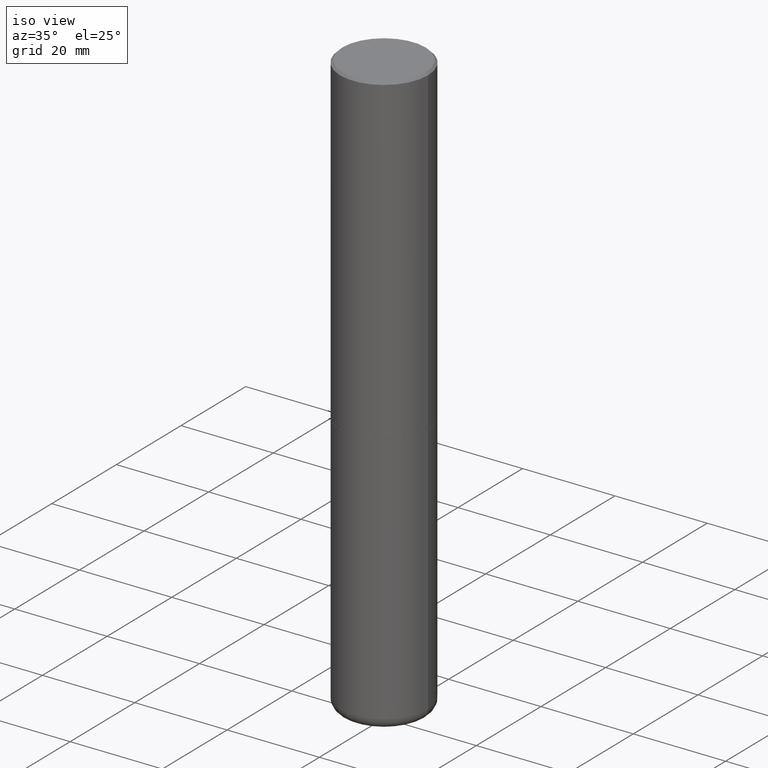
[diagram: clean part render]
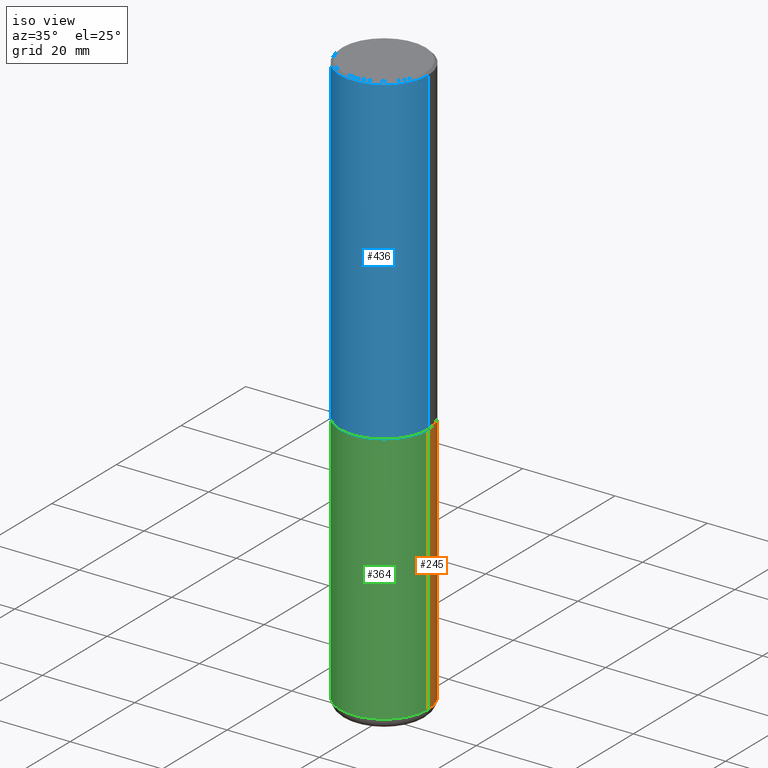
[diagram: same view with three faces highlighted in distinct colors, each labeled with its STEP entity id]
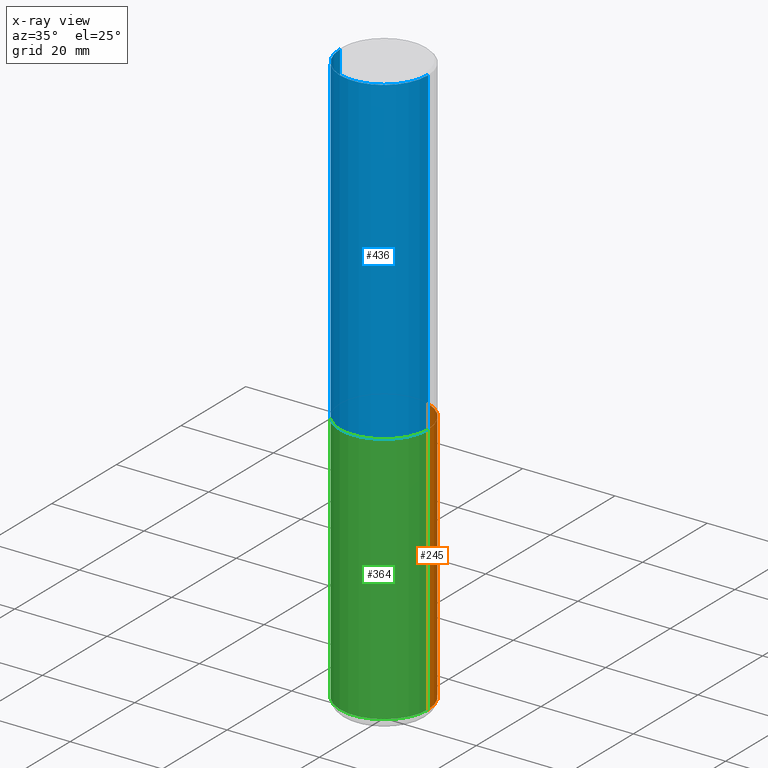
[diagram: x-ray of the same camera — body ghosted, the three highlighted faces saturated]
A machine part, iso view with three faces highlighted in distinct colors.
The next image is the same camera in x-ray (body ghosted, the three faces saturated) — at least one of them is partly hidden behind the body in this view.
Their STEP definitions:

[orange] entity #245 — the highlighted cylindrical surface (partial cylindrical patch) has radius 9.525 mm, axis along (-0, 0, 1).
#9 = CARTESIAN_POINT ( 'NONE',  ( 1.200726021880531330E-28, -1.714318533876182370E-14, -4.910003426924224534 ) ) ;
#14 = VECTOR ( 'NONE', #211, 39.37007874015748143 ) ;
#30 = VERTEX_POINT ( 'NONE', #491 ) ;
#52 = CARTESIAN_POINT ( 'NONE',  ( -0.3750000000000000555, -1.070784425118986345E-14, -2.750000000000000000 ) ) ;
#58 = VECTOR ( 'NONE', #178, 39.37007874015748143 ) ;
#61 = CARTESIAN_POINT ( 'NONE',  ( -0.3750000000000000555, -1.070784425118986345E-14, -4.910003426924224534 ) ) ;
#63 = EDGE_CURVE ( 'NONE', #492, #414, #219, .T. ) ;
#89 = DIRECTION ( 'NONE',  ( -2.445468806185136597E-29, 3.491481338843145583E-15, 1.000000000000000000 ) ) ;
#99 = CARTESIAN_POINT ( 'NONE',  ( -0.3750000000000000555, 2.664535259100376091E-15, -1.844600658845589598E-29 ) ) ;
#105 = CIRCLE ( 'NONE', #213, 0.3750000000000000555 ) ;
#111 = EDGE_CURVE ( 'NONE', #30, #492, #105, .T. ) ;
#122 = DIRECTION ( 'NONE',  ( -2.445468806185136597E-29, 3.491481338843145583E-15, 1.000000000000000000 ) ) ;
#127 = DIRECTION ( 'NONE',  ( 1.000000000000000000, -6.982962677686266711E-15, 0.000000000000000000 ) ) ;
#161 = CARTESIAN_POINT ( 'NONE',  ( 6.725039217009124520E-29, -9.601573681818649859E-15, -2.750000000000000000 ) ) ;
#167 = ORIENTED_EDGE ( 'NONE', *, *, #466, .F. ) ;
#173 = CARTESIAN_POINT ( 'NONE',  ( 0.3750000000000000555, -2.618611004132350016E-15, 1.828566290923476203E-29 ) ) ;
#178 = DIRECTION ( 'NONE',  ( -2.445468806185136877E-29, 3.491481338843145188E-15, 1.000000000000000000 ) ) ;
#210 = ORIENTED_EDGE ( 'NONE', *, *, #284, .F. ) ;
#211 = DIRECTION ( 'NONE',  ( -2.445468806185136877E-29, 3.491481338843145188E-15, 1.000000000000000000 ) ) ;
#212 = VERTEX_POINT ( 'NONE', #346 ) ;
#213 = AXIS2_PLACEMENT_3D ( 'NONE', #9, #122, #489 ) ;
#219 = LINE ( 'NONE', #99, #58 ) ;
#230 = CARTESIAN_POINT ( 'NONE',  ( 0.000000000000000000, 0.000000000000000000, 0.000000000000000000 ) ) ;
#241 = FACE_OUTER_BOUND ( 'NONE', #391, .T. ) ;
#245 = ADVANCED_FACE ( 'NONE', ( #241 ), #350, .T. ) ;
#253 = ORIENTED_EDGE ( 'NONE', *, *, #63, .T. ) ;
#284 = EDGE_CURVE ( 'NONE', #212, #414, #325, .T. ) ;
#312 = ORIENTED_EDGE ( 'NONE', *, *, #111, .T. ) ;
#325 = CIRCLE ( 'NONE', #430, 0.3750000000000000555 ) ;
#346 = CARTESIAN_POINT ( 'NONE',  ( 0.3750000000000000555, -1.222018468595100145E-14, -2.750000000000000000 ) ) ;
#350 = CYLINDRICAL_SURFACE ( 'NONE', #423, 0.3750000000000000555 ) ;
#354 = DIRECTION ( 'NONE',  ( 1.000000000000000000, -6.982962677686265922E-15, 4.876176775795935793E-29 ) ) ;
#355 = DIRECTION ( 'NONE',  ( -2.445468806185136597E-29, 3.491481338843145583E-15, 1.000000000000000000 ) ) ;
#366 = LINE ( 'NONE', #173, #14 ) ;
#391 = EDGE_LOOP ( 'NONE', ( #312, #253, #210, #167 ) ) ;
#414 = VERTEX_POINT ( 'NONE', #52 ) ;
#423 = AXIS2_PLACEMENT_3D ( 'NONE', #230, #355, #354 ) ;
#430 = AXIS2_PLACEMENT_3D ( 'NONE', #161, #89, #127 ) ;
#466 = EDGE_CURVE ( 'NONE', #30, #212, #366, .T. ) ;
#489 = DIRECTION ( 'NONE',  ( 1.000000000000000000, -6.982962677686266711E-15, 0.000000000000000000 ) ) ;
#491 = CARTESIAN_POINT ( 'NONE',  ( 0.3750000000000000555, -1.976179634289417687E-14, -4.910003426924224534 ) ) ;
#492 = VERTEX_POINT ( 'NONE', #61 ) ;

[blue] entity #436 — the highlighted cylindrical surface (partial cylindrical patch) has radius 9.525 mm, axis along (-0, 0, 1).
#16 = VERTEX_POINT ( 'NONE', #456 ) ;
#21 = CARTESIAN_POINT ( 'NONE',  ( 0.000000000000000000, 0.000000000000000000, 0.000000000000000000 ) ) ;
#26 = AXIS2_PLACEMENT_3D ( 'NONE', #273, #82, #234 ) ;
#41 = ORIENTED_EDGE ( 'NONE', *, *, #162, .T. ) ;
#42 = LINE ( 'NONE', #195, #113 ) ;
#49 = CIRCLE ( 'NONE', #26, 0.3750000000000000555 ) ;
#53 = ORIENTED_EDGE ( 'NONE', *, *, #344, .F. ) ;
#54 = DIRECTION ( 'NONE',  ( -2.445468806185136597E-29, 3.491481338843145583E-15, 1.000000000000000000 ) ) ;
#57 = DIRECTION ( 'NONE',  ( -2.445468806185136597E-29, 3.491481338843145583E-15, 1.000000000000000000 ) ) ;
#82 = DIRECTION ( 'NONE',  ( -2.445468806185136597E-29, 3.491481338843145583E-15, 1.000000000000000000 ) ) ;
#87 = AXIS2_PLACEMENT_3D ( 'NONE', #21, #57, #443 ) ;
#97 = DIRECTION ( 'NONE',  ( -2.445468806185136877E-29, 3.491481338843145188E-15, 1.000000000000000000 ) ) ;
#113 = VECTOR ( 'NONE', #352, 39.37007874015748143 ) ;
#118 = VERTEX_POINT ( 'NONE', #148 ) ;
#129 = CARTESIAN_POINT ( 'NONE',  ( -0.3749999999999991673, 2.548781377355480407E-15, -0.02000000000000022246 ) ) ;
#148 = CARTESIAN_POINT ( 'NONE',  ( -0.3750000000000000555, -2.169420654527954251E-15, -2.749000000000000554 ) ) ;
#156 = CARTESIAN_POINT ( 'NONE',  ( 0.3750000000000000555, -1.221669320461216002E-14, -2.749000000000000554 ) ) ;
#162 = EDGE_CURVE ( 'NONE', #118, #291, #49, .T. ) ;
#166 = EDGE_CURVE ( 'NONE', #118, #375, #42, .T. ) ;
#194 = VECTOR ( 'NONE', #97, 39.37007874015748143 ) ;
#195 = CARTESIAN_POINT ( 'NONE',  ( -0.3749999999999995559, 2.664535259100372542E-15, -1.844600658845587356E-29 ) ) ;
#214 = AXIS2_PLACEMENT_3D ( 'NONE', #442, #54, #285 ) ;
#234 = DIRECTION ( 'NONE',  ( 1.000000000000000000, -6.982962677686266711E-15, 0.000000000000000000 ) ) ;
#269 = EDGE_LOOP ( 'NONE', ( #327, #41, #467, #53 ) ) ;
#273 = CARTESIAN_POINT ( 'NONE',  ( 6.722593748202942280E-29, -9.598082200479810007E-15, -2.749000000000000554 ) ) ;
#285 = DIRECTION ( 'NONE',  ( 1.000000000000000000, -6.982962677686266711E-15, 0.000000000000000000 ) ) ;
#291 = VERTEX_POINT ( 'NONE', #156 ) ;
#294 = CARTESIAN_POINT ( 'NONE',  ( 0.3749999999999995559, -2.618611004132346467E-15, 1.828566290923473680E-29 ) ) ;
#327 = ORIENTED_EDGE ( 'NONE', *, *, #166, .F. ) ;
#328 = CYLINDRICAL_SURFACE ( 'NONE', #87, 0.3749999999999995559 ) ;
#334 = LINE ( 'NONE', #294, #194 ) ;
#344 = EDGE_CURVE ( 'NONE', #375, #16, #481, .T. ) ;
#352 = DIRECTION ( 'NONE',  ( -2.445468806185136877E-29, 3.491481338843145188E-15, 1.000000000000000000 ) ) ;
#375 = VERTEX_POINT ( 'NONE', #129 ) ;
#436 = ADVANCED_FACE ( 'NONE', ( #437 ), #328, .T. ) ;
#437 = FACE_OUTER_BOUND ( 'NONE', #269, .T. ) ;
#442 = CARTESIAN_POINT ( 'NONE',  ( 4.890937612370327459E-31, -6.982962677686369262E-17, -0.02000000000000022246 ) ) ;
#443 = DIRECTION ( 'NONE',  ( 1.000000000000000000, -6.982962677686265133E-15, 4.876176775795935793E-29 ) ) ;
#456 = CARTESIAN_POINT ( 'NONE',  ( 0.3749999999999991673, -2.642516375941182112E-15, -0.02000000000000022246 ) ) ;
#467 = ORIENTED_EDGE ( 'NONE', *, *, #473, .T. ) ;
#473 = EDGE_CURVE ( 'NONE', #291, #16, #334, .T. ) ;
#481 = CIRCLE ( 'NONE', #214, 0.3749999999999991673 ) ;

[green] entity #364 — the highlighted cylindrical surface (partial cylindrical patch) has radius 9.525 mm, axis along (-0, 0, 1).
#14 = VECTOR ( 'NONE', #211, 39.37007874015748143 ) ;
#18 = EDGE_LOOP ( 'NONE', ( #141, #377, #190, #95 ) ) ;
#23 = DIRECTION ( 'NONE',  ( 1.000000000000000000, -6.982962677686265922E-15, 4.876176775795935793E-29 ) ) ;
#30 = VERTEX_POINT ( 'NONE', #491 ) ;
#52 = CARTESIAN_POINT ( 'NONE',  ( -0.3750000000000000555, -1.070784425118986345E-14, -2.750000000000000000 ) ) ;
#58 = VECTOR ( 'NONE', #178, 39.37007874015748143 ) ;
#61 = CARTESIAN_POINT ( 'NONE',  ( -0.3750000000000000555, -1.070784425118986345E-14, -4.910003426924224534 ) ) ;
#63 = EDGE_CURVE ( 'NONE', #492, #414, #219, .T. ) ;
#64 = CIRCLE ( 'NONE', #458, 0.3750000000000000555 ) ;
#81 = EDGE_CURVE ( 'NONE', #492, #30, #246, .T. ) ;
#93 = CARTESIAN_POINT ( 'NONE',  ( 0.000000000000000000, 0.000000000000000000, 0.000000000000000000 ) ) ;
#95 = ORIENTED_EDGE ( 'NONE', *, *, #319, .F. ) ;
#99 = CARTESIAN_POINT ( 'NONE',  ( -0.3750000000000000555, 2.664535259100376091E-15, -1.844600658845589598E-29 ) ) ;
#115 = AXIS2_PLACEMENT_3D ( 'NONE', #93, #402, #23 ) ;
#132 = FACE_OUTER_BOUND ( 'NONE', #18, .T. ) ;
#141 = ORIENTED_EDGE ( 'NONE', *, *, #63, .F. ) ;
#173 = CARTESIAN_POINT ( 'NONE',  ( 0.3750000000000000555, -2.618611004132350016E-15, 1.828566290923476203E-29 ) ) ;
#174 = DIRECTION ( 'NONE',  ( 1.000000000000000000, -6.982962677686266711E-15, 0.000000000000000000 ) ) ;
#178 = DIRECTION ( 'NONE',  ( -2.445468806185136877E-29, 3.491481338843145188E-15, 1.000000000000000000 ) ) ;
#190 = ORIENTED_EDGE ( 'NONE', *, *, #466, .T. ) ;
#211 = DIRECTION ( 'NONE',  ( -2.445468806185136877E-29, 3.491481338843145188E-15, 1.000000000000000000 ) ) ;
#212 = VERTEX_POINT ( 'NONE', #346 ) ;
#219 = LINE ( 'NONE', #99, #58 ) ;
#246 = CIRCLE ( 'NONE', #381, 0.3750000000000000555 ) ;
#300 = CARTESIAN_POINT ( 'NONE',  ( 1.200726021880531330E-28, -1.714318533876182370E-14, -4.910003426924224534 ) ) ;
#304 = DIRECTION ( 'NONE',  ( 1.000000000000000000, -6.982962677686266711E-15, 0.000000000000000000 ) ) ;
#319 = EDGE_CURVE ( 'NONE', #414, #212, #64, .T. ) ;
#346 = CARTESIAN_POINT ( 'NONE',  ( 0.3750000000000000555, -1.222018468595100145E-14, -2.750000000000000000 ) ) ;
#364 = ADVANCED_FACE ( 'NONE', ( #132 ), #440, .T. ) ;
#366 = LINE ( 'NONE', #173, #14 ) ;
#377 = ORIENTED_EDGE ( 'NONE', *, *, #81, .T. ) ;
#381 = AXIS2_PLACEMENT_3D ( 'NONE', #300, #409, #304 ) ;
#402 = DIRECTION ( 'NONE',  ( -2.445468806185136597E-29, 3.491481338843145583E-15, 1.000000000000000000 ) ) ;
#409 = DIRECTION ( 'NONE',  ( -2.445468806185136597E-29, 3.491481338843145583E-15, 1.000000000000000000 ) ) ;
#414 = VERTEX_POINT ( 'NONE', #52 ) ;
#435 = DIRECTION ( 'NONE',  ( -2.445468806185136597E-29, 3.491481338843145583E-15, 1.000000000000000000 ) ) ;
#440 = CYLINDRICAL_SURFACE ( 'NONE', #115, 0.3750000000000000555 ) ;
#458 = AXIS2_PLACEMENT_3D ( 'NONE', #474, #435, #174 ) ;
#466 = EDGE_CURVE ( 'NONE', #30, #212, #366, .T. ) ;
#474 = CARTESIAN_POINT ( 'NONE',  ( 6.725039217009124520E-29, -9.601573681818649859E-15, -2.750000000000000000 ) ) ;
#491 = CARTESIAN_POINT ( 'NONE',  ( 0.3750000000000000555, -1.976179634289417687E-14, -4.910003426924224534 ) ) ;
#492 = VERTEX_POINT ( 'NONE', #61 ) ;